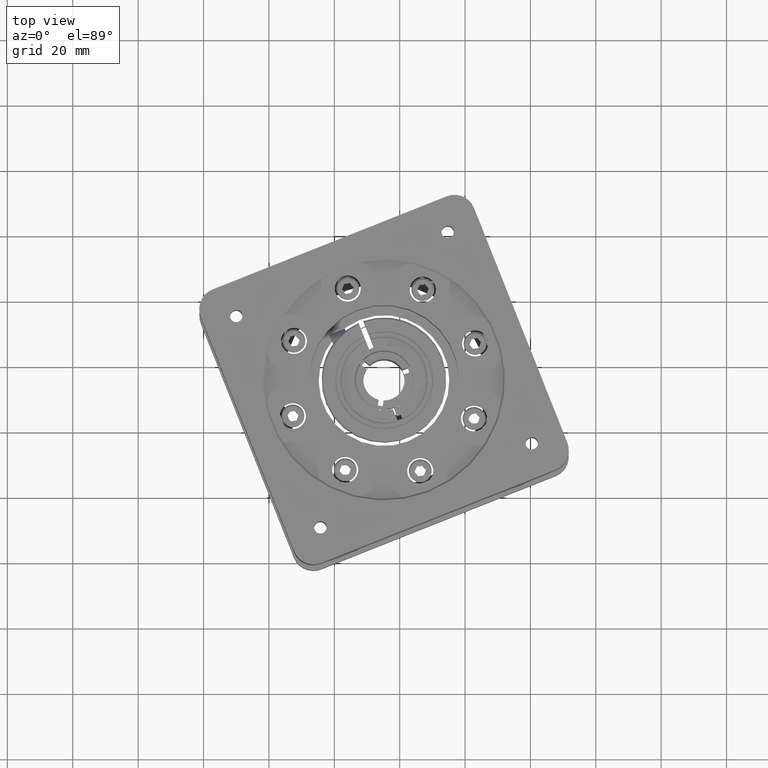
[diagram: clean part render]
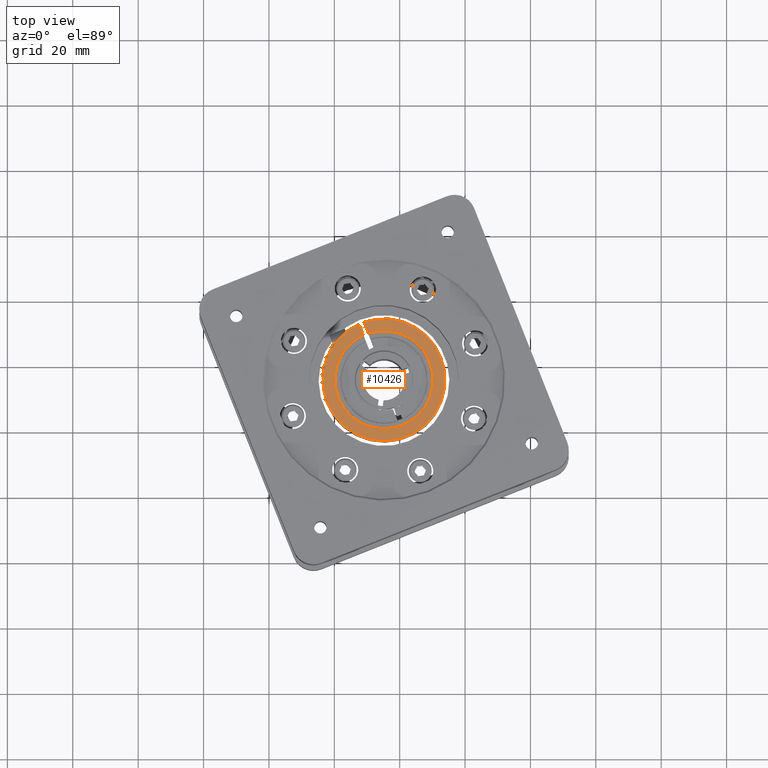
[diagram: same view with one face highlighted and labeled with its STEP entity id]
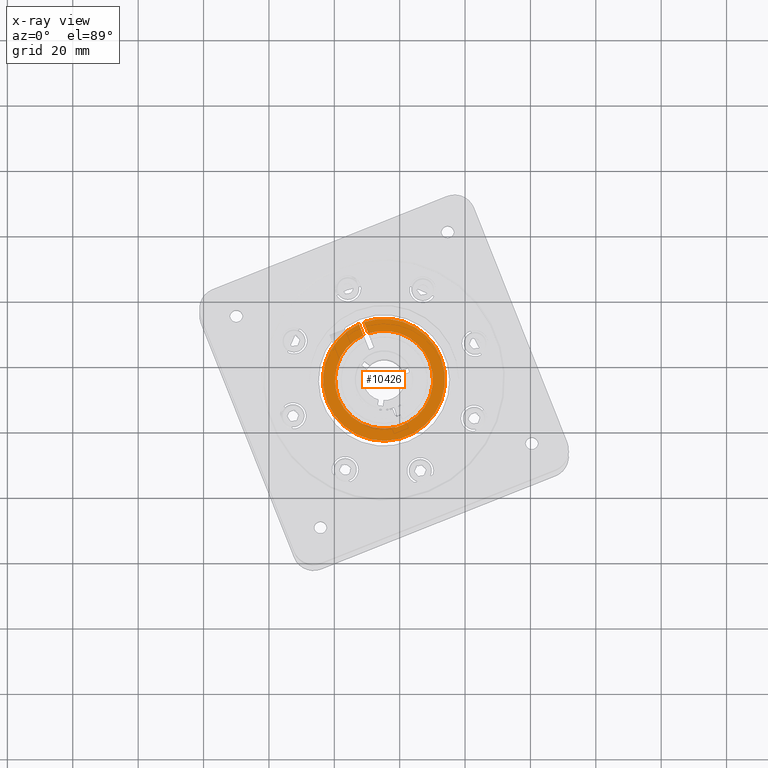
[diagram: x-ray of the same camera — body ghosted, the highlighted face saturated]
A machine part, top view. The second image highlights one B-rep face of the part: STEP entity #10426.
The next image is the same camera in x-ray: the body ghosted, the highlighted face saturated — about 0% of this face is hidden behind the body in this view.
In plain terms, the highlighted planar face has unit normal (-0, -0, 1).
Its self-contained STEP definition (entity closure, byte-faithful):
#226 = CIRCLE ( 'NONE', #6259, 18.66899999999867887 ) ;
#297 = CARTESIAN_POINT ( 'NONE',  ( -105.4694220941412652, 133.0772010955105884, 215.7313592484244111 ) ) ;
#1277 = VERTEX_POINT ( 'NONE', #8180 ) ;
#1286 = EDGE_CURVE ( 'NONE', #8015, #13631, #13095, .T. ) ;
#1473 = VERTEX_POINT ( 'NONE', #4936 ) ;
#1479 = CARTESIAN_POINT ( 'NONE',  ( -103.9825769383997311, 133.6687511972326945, 215.7313592484243827 ) ) ;
#1484 = CARTESIAN_POINT ( 'NONE',  ( -118.7461760688200201, 128.0050272930884319, 215.7313592484243543 ) ) ;
#2153 = AXIS2_PLACEMENT_3D ( 'NONE', #6768, #8056, #2969 ) ;
#2712 = CARTESIAN_POINT ( 'NONE',  ( -104.7981524649570559, 133.5543306282911828, 215.7313592484244111 ) ) ;
#2765 = DIRECTION ( 'NONE',  ( 3.343217069345153601E-15, 9.689034415066984920E-16, -1.000000000000000000 ) ) ;
#2969 = DIRECTION ( 'NONE',  ( -0.9291620770789290606, -0.3696726045007532879, -2.973439993104170479E-15 ) ) ;
#3057 = EDGE_CURVE ( 'NONE', #1277, #4581, #9911, .T. ) ;
#3089 = ORIENTED_EDGE ( 'NONE', *, *, #5000, .F. ) ;
#3685 = FACE_OUTER_BOUND ( 'NONE', #10041, .T. ) ;
#3832 = AXIS2_PLACEMENT_3D ( 'NONE', #10536, #2765, #4232 ) ;
#4039 = ORIENTED_EDGE ( 'NONE', *, *, #3057, .T. ) ;
#4060 = DIRECTION ( 'NONE',  ( 0.3696726045007508454, -0.9291620770789300598, 2.063313616654347553E-15 ) ) ;
#4165 = VECTOR ( 'NONE', #10700, 1000.000000000000114 ) ;
#4232 = DIRECTION ( 'NONE',  ( -0.9291620770789285055, -0.3696726045007545092, -3.697932986347475375E-15 ) ) ;
#4406 = PLANE ( 'NONE',  #4814 ) ;
#4581 = VERTEX_POINT ( 'NONE', #1484 ) ;
#4814 = AXIS2_PLACEMENT_3D ( 'NONE', #5602, #12041, #8318 ) ;
#4936 = CARTESIAN_POINT ( 'NONE',  ( -112.4366519464487766, 150.5891445888600231, 215.7313592484238143 ) ) ;
#4946 = CIRCLE ( 'NONE', #10103, 18.66899999999867887 ) ;
#4957 = DIRECTION ( 'NONE',  ( 3.178734205297082962E-15, 1.034629344806387631E-15, -1.000000000000000000 ) ) ;
#5000 = EDGE_CURVE ( 'NONE', #13631, #1473, #4946, .T. ) ;
#5273 = ORIENTED_EDGE ( 'NONE', *, *, #15684, .T. ) ;
#5602 = CARTESIAN_POINT ( 'NONE',  ( -115.4522270172882941, 108.8215864425275612, 215.7313592484243827 ) ) ;
#6108 = VECTOR ( 'NONE', #4060, 1000.000000000000227 ) ;
#6259 = AXIS2_PLACEMENT_3D ( 'NONE', #10032, #4957, #15196 ) ;
#6410 = CARTESIAN_POINT ( 'NONE',  ( -104.7981524649565870, 133.5543306282905860, 215.7313592484244111 ) ) ;
#6514 = CARTESIAN_POINT ( 'NONE',  ( -110.9498067907075693, 151.1806946905826408, 215.7313592484228764 ) ) ;
#6768 = CARTESIAN_POINT ( 'NONE',  ( -104.7981524649565870, 133.5543306282905860, 215.7313592484244111 ) ) ;
#7196 = ORIENTED_EDGE ( 'NONE', *, *, #10480, .F. ) ;
#7227 = ORIENTED_EDGE ( 'NONE', *, *, #7318, .T. ) ;
#7318 = EDGE_CURVE ( 'NONE', #13533, #1277, #8169, .T. ) ;
#7606 = CARTESIAN_POINT ( 'NONE',  ( -109.5961452861857737, 147.7783031693018643, 215.7313592484243827 ) ) ;
#8015 = VERTEX_POINT ( 'NONE', #8857 ) ;
#8028 = ORIENTED_EDGE ( 'NONE', *, *, #1286, .F. ) ;
#8056 = DIRECTION ( 'NONE',  ( 3.178734205297082962E-15, 1.034629344806387631E-15, -1.000000000000000000 ) ) ;
#8169 = CIRCLE ( 'NONE', #11207, 15.01140000000036245 ) ;
#8180 = CARTESIAN_POINT ( 'NONE',  ( -90.85012886109409180, 139.1036339634939623, 215.7313592484244680 ) ) ;
#8256 = EDGE_CURVE ( 'NONE', #8791, #13533, #11564, .T. ) ;
#8318 = DIRECTION ( 'NONE',  ( 0.9291620770789288386, 0.3696726045007536765, 3.117356327664063056E-15 ) ) ;
#8633 = LINE ( 'NONE', #297, #4165 ) ;
#8791 = VERTEX_POINT ( 'NONE', #6514 ) ;
#8857 = CARTESIAN_POINT ( 'NONE',  ( -87.45162564797129789, 140.4557484817146644, 215.7313592484244680 ) ) ;
#9133 = CARTESIAN_POINT ( 'NONE',  ( -104.7981524649570559, 133.5543306282911828, 215.7313592484244111 ) ) ;
#9435 = ORIENTED_EDGE ( 'NONE', *, *, #8256, .T. ) ;
#9911 = CIRCLE ( 'NONE', #3832, 15.01140000000036245 ) ;
#10032 = CARTESIAN_POINT ( 'NONE',  ( -104.7981524649565870, 133.5543306282905860, 215.7313592484244111 ) ) ;
#10041 = EDGE_LOOP ( 'NONE', ( #7196, #9435, #7227, #4039, #5273, #11804, #3089, #8028 ) ) ;
#10103 = AXIS2_PLACEMENT_3D ( 'NONE', #6410, #10365, #15542 ) ;
#10365 = DIRECTION ( 'NONE',  ( 3.178734205297082962E-15, 1.034629344806387631E-15, -1.000000000000000000 ) ) ;
#10426 = ADVANCED_FACE ( 'NONE', ( #3685 ), #4406, .T. ) ;
#10480 = EDGE_CURVE ( 'NONE', #8791, #8015, #226, .T. ) ;
#10536 = CARTESIAN_POINT ( 'NONE',  ( -104.7981524649570559, 133.5543306282911828, 215.7313592484244111 ) ) ;
#10547 = DIRECTION ( 'NONE',  ( 3.343217069345153601E-15, 9.689034415066984920E-16, -1.000000000000000000 ) ) ;
#10690 = CIRCLE ( 'NONE', #15454, 15.01140000000036245 ) ;
#10700 = DIRECTION ( 'NONE',  ( -0.3696726045007507899, 0.9291620770789300598, -2.063313616654352681E-15 ) ) ;
#11207 = AXIS2_PLACEMENT_3D ( 'NONE', #9133, #10547, #14439 ) ;
#11399 = VERTEX_POINT ( 'NONE', #12167 ) ;
#11564 = LINE ( 'NONE', #1479, #6108 ) ;
#11804 = ORIENTED_EDGE ( 'NONE', *, *, #16103, .T. ) ;
#12041 = DIRECTION ( 'NONE',  ( -2.975547761382203042E-15, -9.537904214644058725E-16, 1.000000000000000000 ) ) ;
#12090 = DIRECTION ( 'NONE',  ( 3.343217069345153601E-15, 9.689034415066984920E-16, -1.000000000000000000 ) ) ;
#12167 = CARTESIAN_POINT ( 'NONE',  ( -111.0829904419278904, 147.1867530675804687, 215.7313592484239564 ) ) ;
#13095 = CIRCLE ( 'NONE', #2153, 18.66899999999867887 ) ;
#13375 = DIRECTION ( 'NONE',  ( -0.9291620770789285055, -0.3696726045007545092, -3.697932986347475375E-15 ) ) ;
#13533 = VERTEX_POINT ( 'NONE', #7606 ) ;
#13631 = VERTEX_POINT ( 'NONE', #14452 ) ;
#14439 = DIRECTION ( 'NONE',  ( -0.9291620770789285055, -0.3696726045007545092, -3.697932986347475375E-15 ) ) ;
#14452 = CARTESIAN_POINT ( 'NONE',  ( -122.1446792819418903, 126.6529127748665076, 215.7313592484243543 ) ) ;
#15196 = DIRECTION ( 'NONE',  ( -0.9291620770789290606, -0.3696726045007532879, -2.973439993104170479E-15 ) ) ;
#15454 = AXIS2_PLACEMENT_3D ( 'NONE', #2712, #12090, #13375 ) ;
#15542 = DIRECTION ( 'NONE',  ( -0.9291620770789290606, -0.3696726045007532879, -2.973439993104170479E-15 ) ) ;
#15684 = EDGE_CURVE ( 'NONE', #4581, #11399, #10690, .T. ) ;
#16103 = EDGE_CURVE ( 'NONE', #11399, #1473, #8633, .T. ) ;